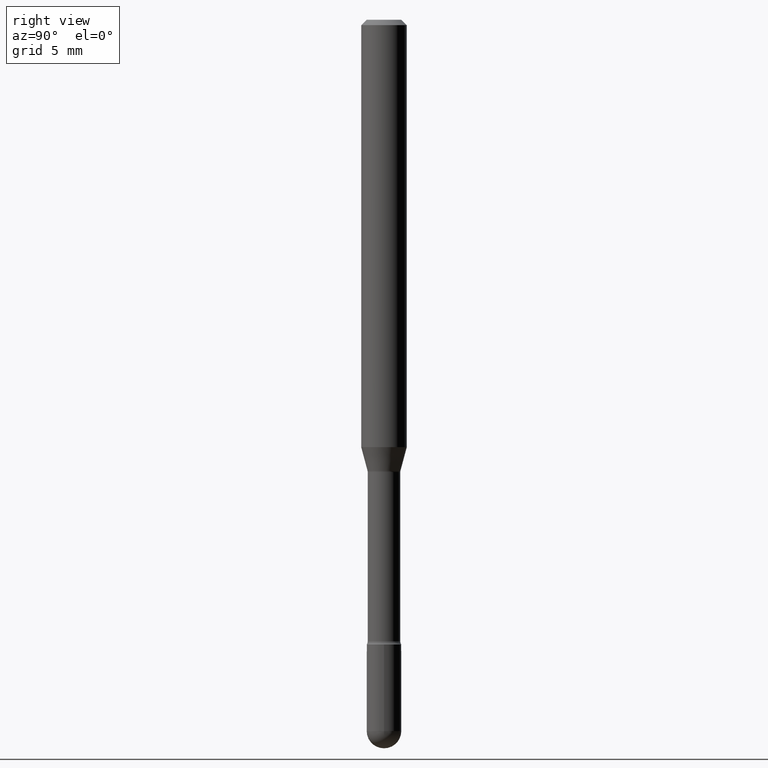
[diagram: clean part render]
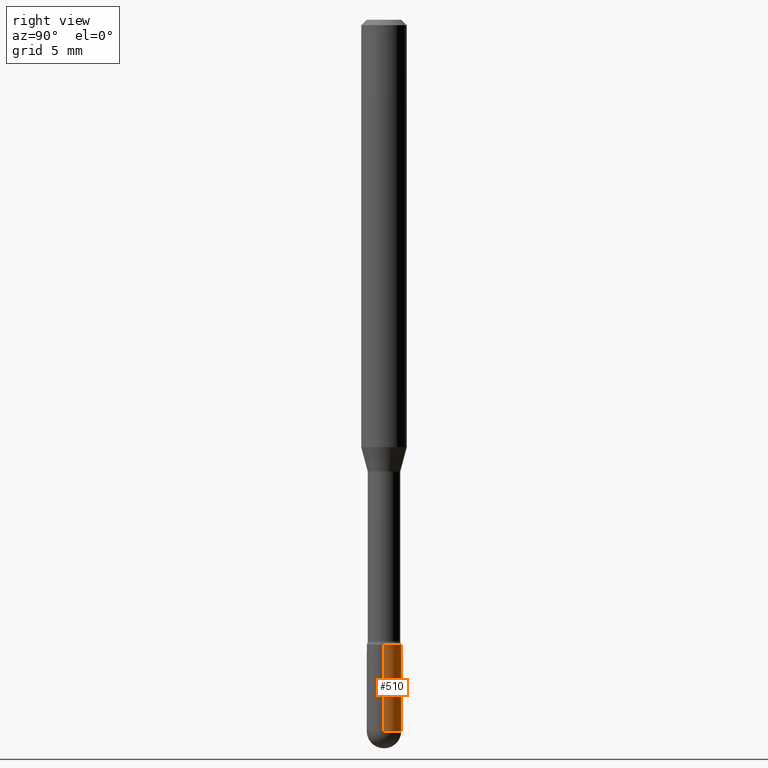
[diagram: same view with one face highlighted and labeled with its STEP entity id]
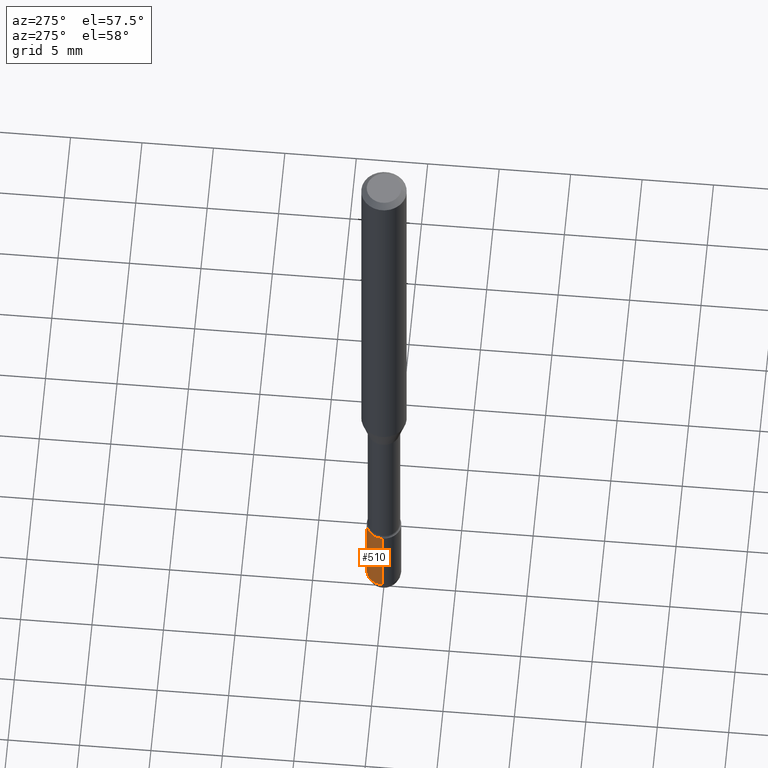
[diagram: same view with one face highlighted and labeled with its STEP entity id]
A machine part, right view. The second image highlights one B-rep face of the part: STEP entity #510.
A second angle (auxiliary view) of the same face is appended — the face is thin or edge-on in the first view.
In plain terms, the highlighted cylindrical surface (edge-blend (fillet) strip) has radius 1.2065 mm, axis along (-0, 0, 1).
Its self-contained STEP definition (entity closure, byte-faithful):
#6 = AXIS2_PLACEMENT_3D ( 'NONE', #251, #207, #156 ) ;
#13 = VERTEX_POINT ( 'NONE', #221 ) ;
#14 = EDGE_CURVE ( 'NONE', #293, #132, #387, .T. ) ;
#28 = CARTESIAN_POINT ( 'NONE',  ( 3.316907271901453357E-16, 0.04749999999999317268, -1.952500000000000346 ) ) ;
#42 = ORIENTED_EDGE ( 'NONE', *, *, #341, .F. ) ;
#77 = CARTESIAN_POINT ( 'NONE',  ( 0.04750000000000000749, -3.316907271900977082E-16, 2.316183968503069432E-30 ) ) ;
#78 = VECTOR ( 'NONE', #434, 39.37007874015748143 ) ;
#79 = CARTESIAN_POINT ( 'NONE',  ( 0.000000000000000000, 0.000000000000000000, 0.000000000000000000 ) ) ;
#96 = DIRECTION ( 'NONE',  ( 1.000000000000000000, -6.982962677686260400E-15, 0.000000000000000000 ) ) ;
#104 = ORIENTED_EDGE ( 'NONE', *, *, #454, .T. ) ;
#107 = CIRCLE ( 'NONE', #550, 0.04749999999999999362 ) ;
#117 = ORIENTED_EDGE ( 'NONE', *, *, #237, .T. ) ;
#132 = VERTEX_POINT ( 'NONE', #282 ) ;
#142 = CIRCLE ( 'NONE', #317, 0.04750000000000000749 ) ;
#145 = DIRECTION ( 'NONE',  ( 1.000000000000000000, -6.982962677686261977E-15, 0.000000000000000000 ) ) ;
#156 = DIRECTION ( 'NONE',  ( 1.000000000000000000, -6.982962677686260400E-15, 0.000000000000000000 ) ) ;
#179 = CARTESIAN_POINT ( 'NONE',  ( -0.04750000000000000749, -6.064996105617570464E-15, -1.952499999999999902 ) ) ;
#180 = CYLINDRICAL_SURFACE ( 'NONE', #386, 0.04750000000000000749 ) ;
#195 = CARTESIAN_POINT ( 'NONE',  ( 0.04749999999999999362, -6.319581223306092199E-15, -1.715000000000000080 ) ) ;
#201 = ORIENTED_EDGE ( 'NONE', *, *, #14, .T. ) ;
#205 = VERTEX_POINT ( 'NONE', #28 ) ;
#207 = DIRECTION ( 'NONE',  ( -2.445468806185136597E-29, 3.491481338843145583E-15, 1.000000000000000000 ) ) ;
#221 = CARTESIAN_POINT ( 'NONE',  ( 0.04750000000000000749, -6.734194632293715468E-15, -1.952499999999999902 ) ) ;
#237 = EDGE_CURVE ( 'NONE', #13, #205, #142, .T. ) ;
#251 = CARTESIAN_POINT ( 'NONE',  ( 4.774777844076478914E-29, -6.817117314091241226E-15, -1.952499999999999902 ) ) ;
#264 = CIRCLE ( 'NONE', #6, 0.04750000000000000749 ) ;
#278 = DIRECTION ( 'NONE',  ( -2.445468806185136597E-29, 3.491481338843145583E-15, 1.000000000000000000 ) ) ;
#282 = CARTESIAN_POINT ( 'NONE',  ( -0.04749999999999999362, -6.064996105617570464E-15, -1.715000000000000080 ) ) ;
#293 = VERTEX_POINT ( 'NONE', #179 ) ;
#300 = EDGE_CURVE ( 'NONE', #13, #464, #307, .T. ) ;
#307 = LINE ( 'NONE', #77, #78 ) ;
#316 = DIRECTION ( 'NONE',  ( -2.445468806185136877E-29, 3.491481338843145188E-15, 1.000000000000000000 ) ) ;
#317 = AXIS2_PLACEMENT_3D ( 'NONE', #452, #278, #96 ) ;
#341 = EDGE_CURVE ( 'NONE', #464, #132, #107, .T. ) ;
#350 = DIRECTION ( 'NONE',  ( 1.000000000000000000, -6.982962677686266711E-15, 4.876176775795934672E-29 ) ) ;
#356 = DIRECTION ( 'NONE',  ( -2.445468806185136597E-29, 3.491481338843145583E-15, 1.000000000000000000 ) ) ;
#386 = AXIS2_PLACEMENT_3D ( 'NONE', #79, #432, #350 ) ;
#387 = LINE ( 'NONE', #524, #473 ) ;
#394 = FACE_OUTER_BOUND ( 'NONE', #487, .T. ) ;
#416 = CARTESIAN_POINT ( 'NONE',  ( 4.193979002607509757E-29, -5.987890496115994688E-15, -1.715000000000000080 ) ) ;
#432 = DIRECTION ( 'NONE',  ( -2.445468806185136597E-29, 3.491481338843145583E-15, 1.000000000000000000 ) ) ;
#434 = DIRECTION ( 'NONE',  ( -2.445468806185136877E-29, 3.491481338843145188E-15, 1.000000000000000000 ) ) ;
#444 = ORIENTED_EDGE ( 'NONE', *, *, #300, .F. ) ;
#452 = CARTESIAN_POINT ( 'NONE',  ( 4.774777844076478914E-29, -6.817117314091241226E-15, -1.952499999999999902 ) ) ;
#454 = EDGE_CURVE ( 'NONE', #205, #293, #264, .T. ) ;
#464 = VERTEX_POINT ( 'NONE', #195 ) ;
#473 = VECTOR ( 'NONE', #316, 39.37007874015748143 ) ;
#487 = EDGE_LOOP ( 'NONE', ( #104, #201, #42, #444, #117 ) ) ;
#510 = ADVANCED_FACE ( 'NONE', ( #394 ), #180, .T. ) ;
#524 = CARTESIAN_POINT ( 'NONE',  ( -0.04750000000000000749, 3.375077994860476415E-16, -2.336494167871080260E-30 ) ) ;
#550 = AXIS2_PLACEMENT_3D ( 'NONE', #416, #356, #145 ) ;